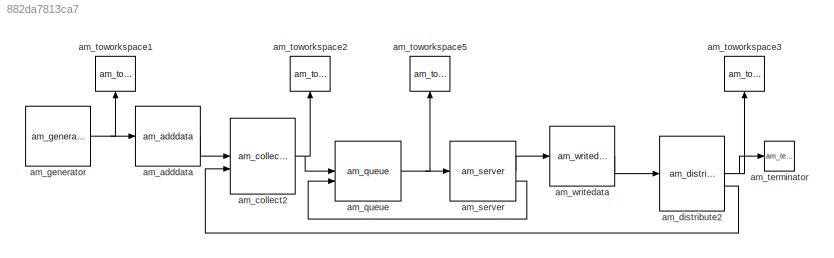
MODEL slx_882da7813ca7
KIND model
CONFIG AbsTol = auto
CONFIG EnableMultiTasking = off
CONFIG FixedStep = auto
CONFIG MaxStep = auto
CONFIG MinStep = auto
CONFIG RelTol = 1e-3
CONFIG SampleTimeConstraint = Unconstrained
CONFIG SolverName = VariableStepAuto
CONFIG StartTime = 0.0
CONFIG StopTime = 10.0
BLOCK [Reference] am_adddata  REF=NSA_DEVS_LOGISTICS/am_adddata
  SourceBlock = NSA_DEVS_LOGISTICS/am_adddata
  SourceProductName = Logistics
  SourceType = Adddata
BLOCK [Reference] am_collect2  REF=NSA_DEVS_ROUTING/am_collect2
  SourceBlock = NSA_DEVS_ROUTING/am_collect2
  SourceProductName = Routing
  SourceType = Collect2
BLOCK [Reference] am_distribute2  REF=NSA_DEVS_ROUTING/am_distribute2
  SourceBlock = NSA_DEVS_ROUTING/am_distribute2
  SourceProductName = Routing
  SourceType = Distribute2
BLOCK [Reference] am_generator  REF=NSA_DEVS_SOURCES/am_generator
  SourceBlock = NSA_DEVS_SOURCES/am_generator
  SourceProductName = Sources
  SourceType = Generator
BLOCK [Reference] am_queue  REF=NSA_DEVS_LOGISTICS/am_queue
  SourceBlock = NSA_DEVS_LOGISTICS/am_queue
  SourceProductName = Logistics
  SourceType = Queue
BLOCK [Reference] am_server  REF=NSA_DEVS_LOGISTICS/am_server
  SourceBlock = NSA_DEVS_LOGISTICS/am_server
  SourceProductName = Logistics
  SourceType = Server
BLOCK [Reference] am_terminator  REF=NSA_DEVS_LOGISTICS/am_terminator
  SourceBlock = NSA_DEVS_LOGISTICS/am_terminator
  SourceProductName = Logistics
  SourceType = Terminator
BLOCK [Reference] am_toworkspace1  REF=NSA_DEVS_SINKS/am_toworkspace
  NameLocation = right
  SourceBlock = NSA_DEVS_SINKS/am_toworkspace
  SourceProductName = Sinks
  SourceType = ToWorkspace
BLOCK [Reference] am_toworkspace2  REF=NSA_DEVS_SINKS/am_toworkspace
  NameLocation = right
  SourceBlock = NSA_DEVS_SINKS/am_toworkspace
  SourceProductName = Sinks
  SourceType = ToWorkspace
BLOCK [Reference] am_toworkspace3  REF=NSA_DEVS_SINKS/am_toworkspace
  NameLocation = right
  SourceBlock = NSA_DEVS_SINKS/am_toworkspace
  SourceProductName = Sinks
  SourceType = ToWorkspace
BLOCK [Reference] am_toworkspace5  REF=NSA_DEVS_SINKS/am_toworkspace
  NameLocation = right
  SourceBlock = NSA_DEVS_SINKS/am_toworkspace
  SourceProductName = Sinks
  SourceType = ToWorkspace
BLOCK [Reference] am_writedata  REF=NSA_DEVS_LOGISTICS/am_writedata
  SourceBlock = NSA_DEVS_LOGISTICS/am_writedata
  SourceProductName = Logistics
  SourceType = Writedata
LINE am_adddata:1 -> am_collect2:1
NET am_collect2:1 -> am_queue:1, am_toworkspace2:1
NET am_distribute2:1 -> am_terminator:1, am_toworkspace3:1
LINE am_distribute2:2 -> am_collect2:2
NET am_generator:1 -> am_adddata:1, am_toworkspace1:1
NET am_queue:1 -> am_server:1, am_toworkspace5:1
LINE am_server:1 -> am_writedata:1
LINE am_server:2 -> am_queue:2
LINE am_writedata:1 -> am_distribute2:1
note: NET lines group one-source signal fan-out (src -> all destinations, sorted); 1:1 wires keep LINE
